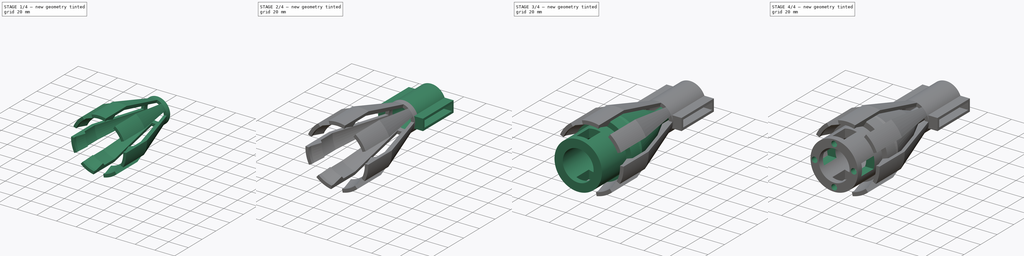
[diagram: build sequence overview — one tinted view per stage of 4, left to right]
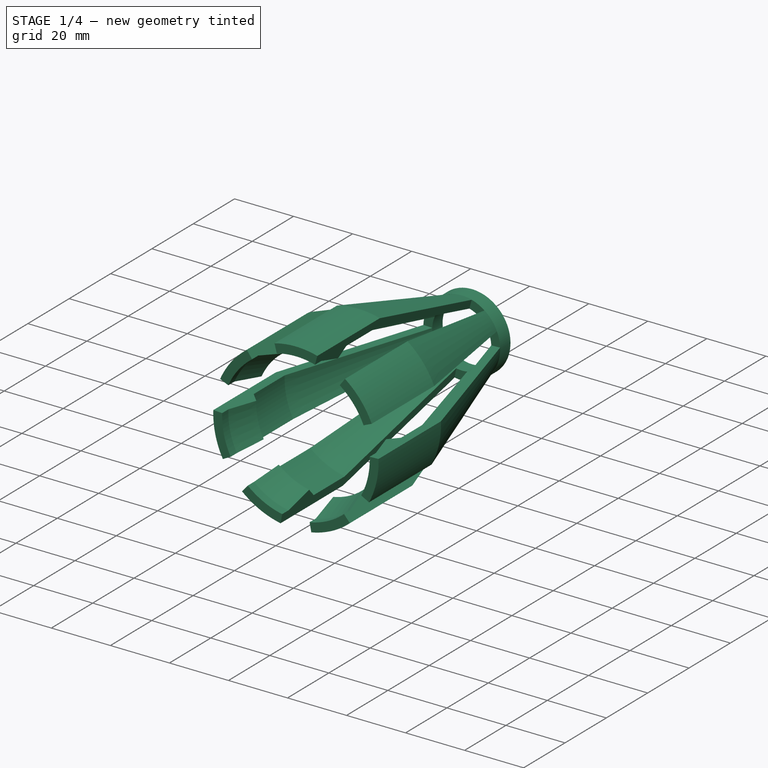
[diagram: stage 1 of 4 — iso view after this stage's code; geometry added in this stage tinted green]
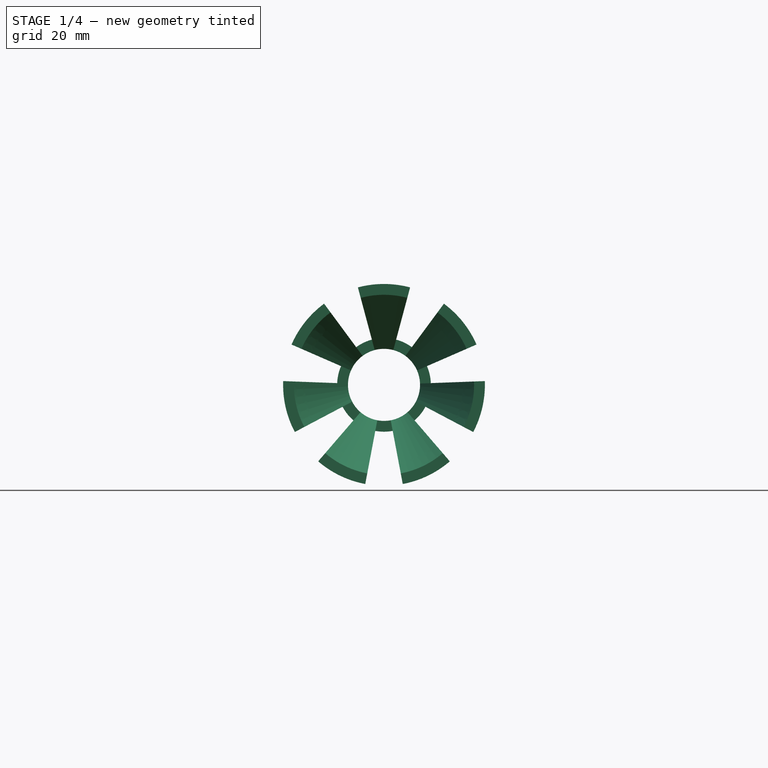
[diagram: stage 1 of 4 — front view after this stage's code; geometry added in this stage tinted green]
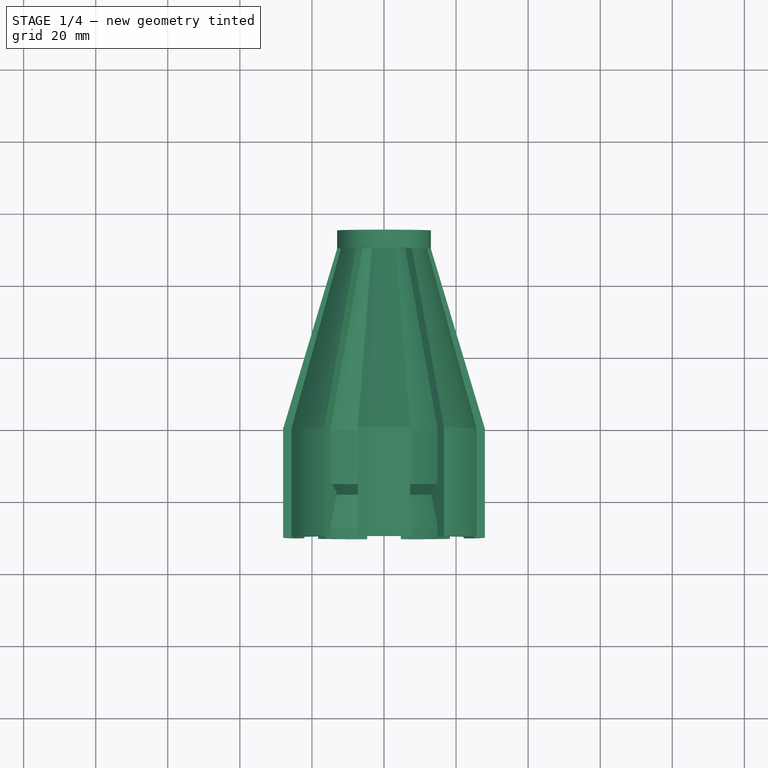
[diagram: stage 1 of 4 — top view after this stage's code; geometry added in this stage tinted green]
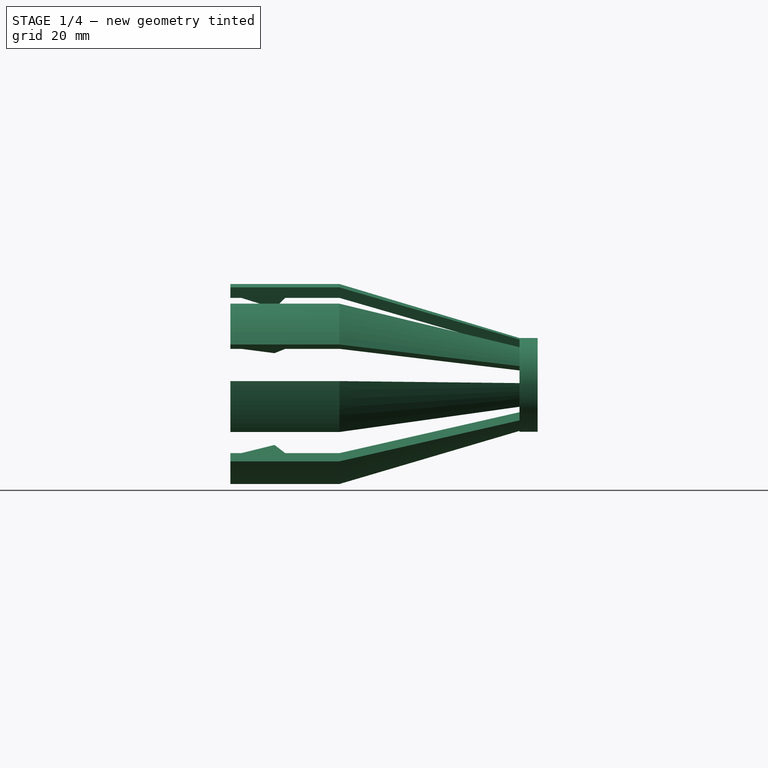
[diagram: stage 1 of 4 — right view after this stage's code; geometry added in this stage tinted green]
FCSTD DOCUMENT  (FreeCAD 0.19R24276 (Git))
Label: connector
License: All rights reserved
LicenseURL: http://en.wikipedia.org/wiki/All_rights_reserved
objects: Sketcher::SketchObject×6, PartDesign::PolarPattern×4, PartDesign::Revolution×3, PartDesign::Pad×2, PartDesign::ShapeBinder×2, PartDesign::Body×2, PartDesign::SubtractiveBox×1, PartDesign::Hole×1
note: 28 computed .brp shape members not serialized (recipe doc carries the construction recipe); baked Part::Feature solids carry a one-line shape summary decoded from their .brp

FEATURE [Sketcher::SketchObject] Sketch
  FullyConstrained = true
  MapMode = 5
  Placement = pos=(0,0,0) rot=(0.57735,0.57735,0.57735;2.0944rad)
  Support = -> [YZ_Plane]
  sketch-geometry (15):
    g0: LineSegment StartX=0 StartY=0 StartZ=0 EndX=50 EndY=0 EndZ=0
    g1: LineSegment StartX=0 StartY=0 StartZ=0 EndX=0 EndY=25 EndZ=0
    g2: LineSegment StartX=50 StartY=0 StartZ=0 EndX=50 EndY=10 EndZ=0
    g3: LineSegment StartX=50 StartY=10 StartZ=0 EndX=0 EndY=25 EndZ=0
    g4: LineSegment StartX=0 StartY=25 StartZ=0 EndX=0 EndY=28 EndZ=0
    g5: LineSegment StartX=50 StartY=10 StartZ=0 EndX=50 EndY=13 EndZ=0
    g6: LineSegment StartX=50 StartY=13 StartZ=0 EndX=0 EndY=28 EndZ=0
    g7: LineSegment StartX=-30.2331 StartY=28 StartZ=0 EndX=-30.2331 EndY=25 EndZ=0
    g8: LineSegment StartX=-30.2331 StartY=25 StartZ=0 EndX=0 EndY=25 EndZ=0
    g9: LineSegment StartX=-27.2331 StartY=25 StartZ=0 EndX=-18 EndY=22 EndZ=0
    g10: LineSegment StartX=-18 StartY=22 StartZ=0 EndX=-15 EndY=25 EndZ=0
    g11: LineSegment StartX=-18 StartY=22 StartZ=0 EndX=-18 EndY=25 EndZ=0
    g12: LineSegment StartX=-30.2331 StartY=25 StartZ=0 EndX=-27.2331 EndY=25 EndZ=0
    g13: LineSegment StartX=-15 StartY=25 StartZ=0 EndX=0 EndY=25 EndZ=0
    g14: LineSegment StartX=-30.2331 StartY=28 StartZ=0 EndX=0 EndY=28 EndZ=0
  constraints (41):
    c: Coincident(g0,g-1)
    c: PointOnObject(g0,g-1)
    c: Distance(g0) = 50
    c: Coincident(g1,g-1)
    c: PointOnObject(g1,g-2)
    c: Distance(g1) = 25
    c: Coincident(g2,g0)
    c: Vertical(g2)
    c: Coincident(g3,g2)
    c: Coincident(g3,g1)
    c: Distance(g2) = 10
    c: Coincident(g4,g3)
    c: PointOnObject(g4,g-2)
    c: Coincident(g5,g2)
    c: Vertical(g5)
    c: Coincident(g6,g5)
    c: Coincident(g6,g4)
    c: Distance(g4) = 3
    c: Vertical(g7)
    c: Distance(g5) = 3
    c: Coincident(g8,g3)
    c: Horizontal(g8)
    c: Coincident(g10,g9)
    c: PointOnObject(g10,g8)
    c: Angle(g9,g8) = 0.314159
    c: Distance(g9,g8) = 3
    c: Angle(g10,g8) = 2.35619
    c: Coincident(g11,g9)
    c: PointOnObject(g11,g8)
    c: Vertical(g11)
    c: PointOnObject(g9,g8)
    c: Distance(g7,g9) = 3
    c: Coincident(g8,g7)
    c: Coincident(g12,g7)
    c: Coincident(g12,g9)
    c: Coincident(g13,g10)
    c: Coincident(g14,g6)
    c: Horizontal(g14)
    c: Coincident(g13,g3)
    c: DistanceX(g9,g3) = 18
    c: Coincident(g14,g7)
FEATURE [PartDesign::Revolution] Revolution
  Angle = 30
  Axis = (1e-16,1,-1e-16)
  Base = (0,0,0)
  Midplane = true
  Placement = pos=(0,0,0) rot=(0.57735,0.57735,0.57735;2.0944rad)
  Profile = -> Sketch
  ReferenceAxis = -> Y_Axis
  Reversed = true
FEATURE [Sketcher::SketchObject] Sketch003
  ExternalGeometry = -> [Revolution]
  FullyConstrained = true
  MapMode = 5
  Placement = pos=(5.6e-15,50,-2.22e-14) rot=(0.57735,0.57735,0.57735;4.18879rad)
  Support = -> [Revolution]
  sketch-geometry (2):
    g0: Circle CenterX=0 CenterY=0 CenterZ=0 NormalX=0 NormalY=0 NormalZ=1 AngleXU=0 Radius=10
    g1: Circle CenterX=0 CenterY=0 CenterZ=0 NormalX=0 NormalY=0 NormalZ=1 AngleXU=0 Radius=13
  constraints (4):
    c: PointOnObject(g-3,g0)
    c: PointOnObject(g-4,g1)
    c: Coincident(g1,g-1)
    c: Coincident(g0,g1)
FEATURE [PartDesign::Pad] Pad
  BaseFeature = -> Revolution
  Direction = (1,1,1)
  Length = 5
  Length2 = 100
  Placement = pos=(0,0,0) rot=(0.57735,0.57735,0.57735;2.0944rad)
  Profile = -> Sketch003
  Type = 0
FEATURE [PartDesign::PolarPattern] PolarPattern
  Angle = 360
  Axis = -> Y_Axis
  BaseFeature = -> Pad
  Occurrences = 7
  Originals = -> [Revolution]
  Placement = pos=(0,0,0) rot=(0.57735,0.57735,0.57735;2.0944rad)
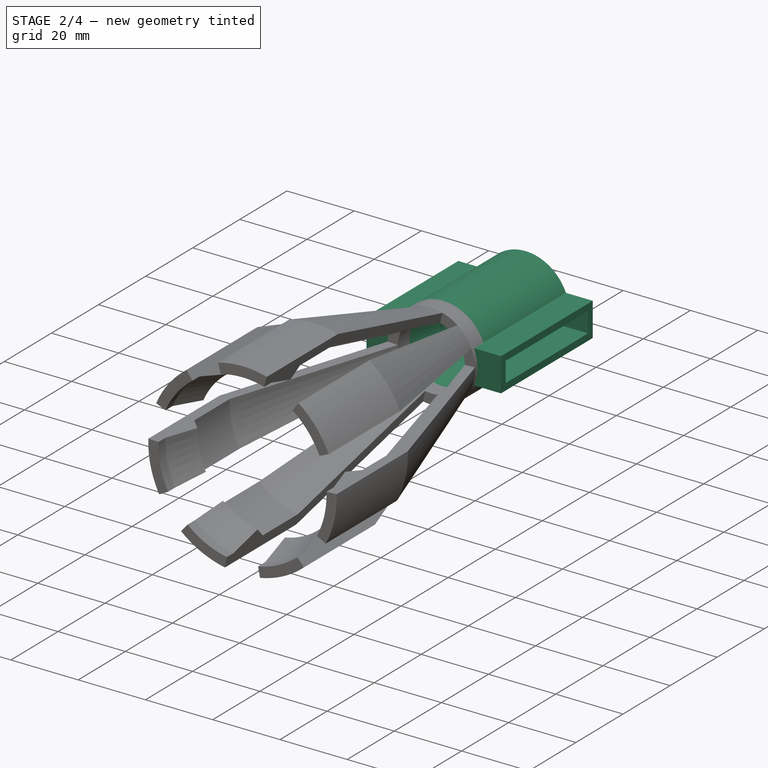
[diagram: stage 2 of 4 — iso view after this stage's code; geometry added in this stage tinted green]
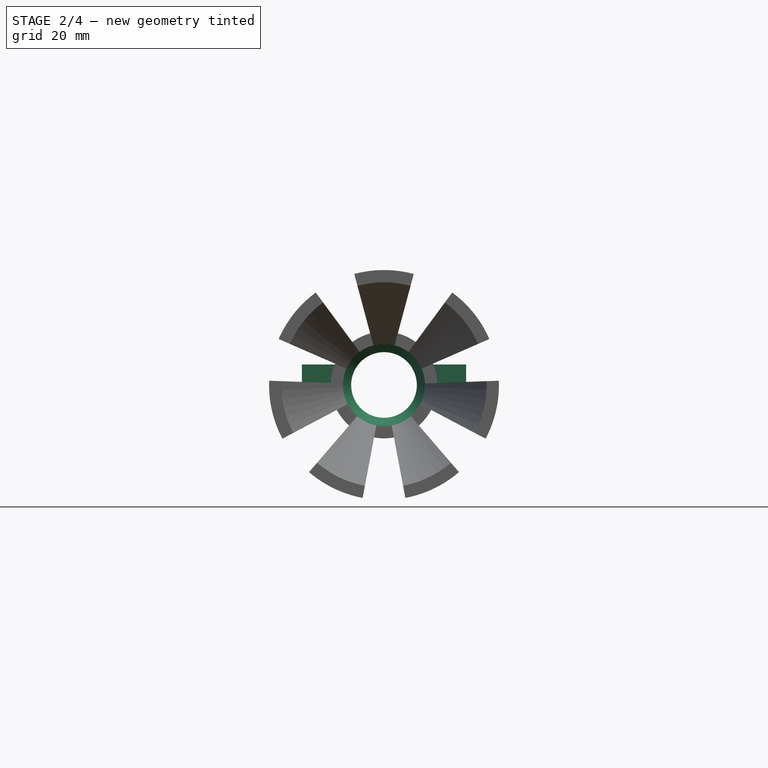
[diagram: stage 2 of 4 — front view after this stage's code; geometry added in this stage tinted green]
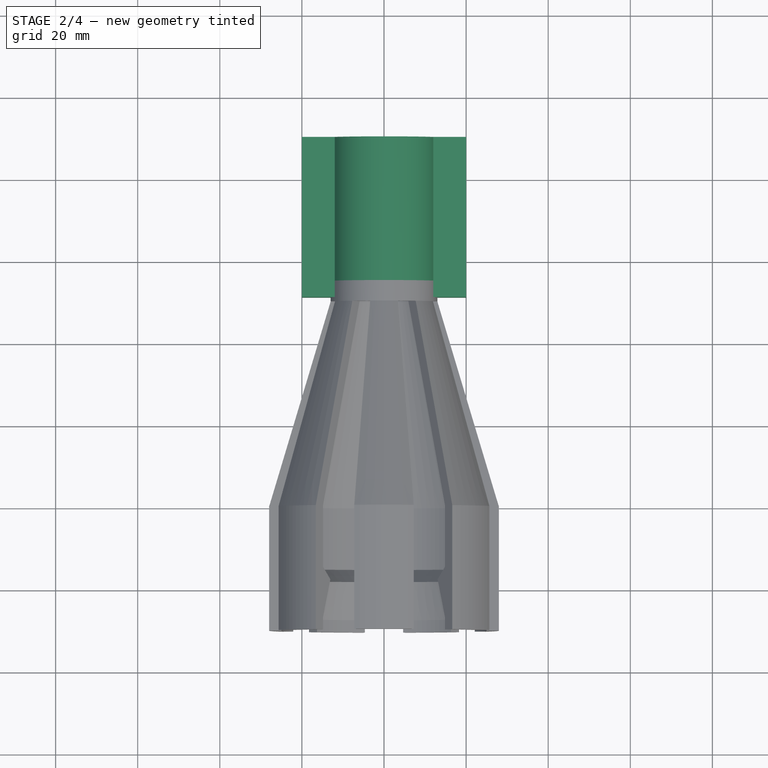
[diagram: stage 2 of 4 — top view after this stage's code; geometry added in this stage tinted green]
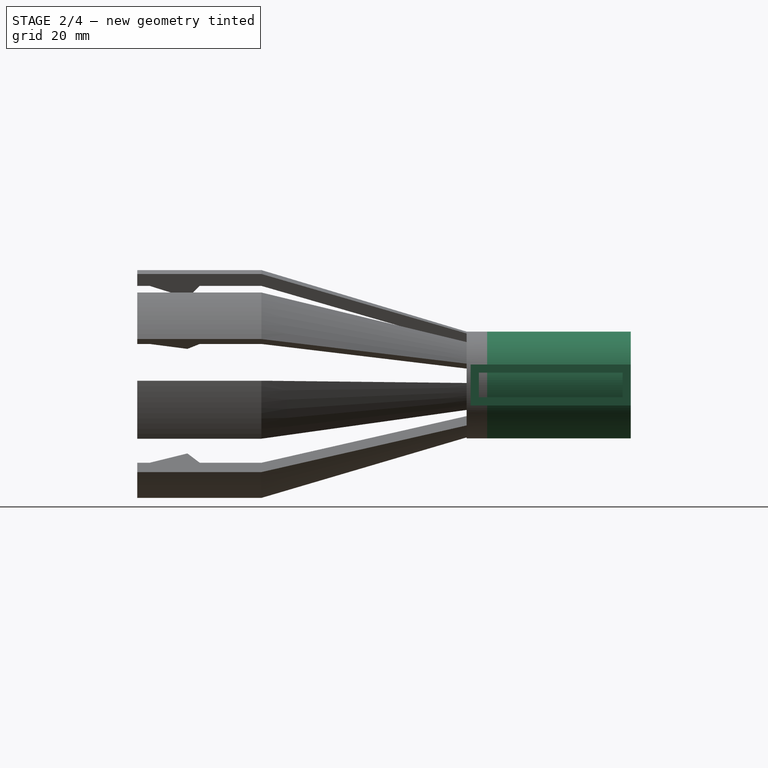
[diagram: stage 2 of 4 — right view after this stage's code; geometry added in this stage tinted green]
FEATURE [Sketcher::SketchObject] Sketch004
  ExternalGeometry = -> [PolarPattern]
  FullyConstrained = true
  MapMode = 5
  Placement = pos=(0,0,0) rot=(0.57735,0.57735,0.57735;2.0944rad)
  Support = -> [YZ_Plane]
  sketch-geometry (6):
    g0: LineSegment StartX=55 StartY=13 StartZ=0 EndX=90 EndY=13 EndZ=0
    g1: LineSegment StartX=65 StartY=8 StartZ=0 EndX=90 EndY=8 EndZ=0
    g2: LineSegment StartX=90 StartY=8 StartZ=0 EndX=90 EndY=13 EndZ=0
    g3: LineSegment StartX=55 StartY=10 StartZ=0 EndX=55 EndY=13 EndZ=0
    g4: LineSegment StartX=65 StartY=8 StartZ=0 EndX=55 EndY=10 EndZ=0
    g5: LineSegment StartX=90 StartY=8 StartZ=0 EndX=90 EndY=0 EndZ=0
  constraints (16):
    c: Coincident(g2,g1)
    c: Coincident(g2,g0)
    c: Distance(g1) = 25
    c: Coincident(g4,g1)
    c: Coincident(g4,g3)
    c: Horizontal(g1)
    c: DistanceX(g3,g1) = 10
    c: Coincident(g3,g0)
    c: Vertical(g2)
    c: Horizontal(g0)
    c: Coincident(g5,g1)
    c: PointOnObject(g5,g-1)
    c: Vertical(g5)
    c: DistanceY(g5,g5) = 8
    c: Coincident(g0,g-4)
    c: Coincident(g3,g-5)
FEATURE [PartDesign::Revolution] Revolution001
  Angle = 360
  Axis = (1e-16,1,-1e-16)
  Base = (0,0,0)
  BaseFeature = -> PolarPattern
  Placement = pos=(0,0,0) rot=(0.57735,0.57735,0.57735;2.0944rad)
  Profile = -> Sketch004
  ReferenceAxis = -> Y_Axis
FEATURE [PartDesign::Body] Body001  label="male"
  Group = -> [ShapeBinder,ShapeBinder001,Sketch007,Revolution002,Box,PolarPattern001,Sketch008,Hole,PolarPattern002]
  Origin = -> Origin001
  Tip = -> PolarPattern002
FEATURE [Sketcher::SketchObject] Sketch009
  AttachmentOffset = pos=(0,0,10) rot=(0,0,1;0rad)
  ExternalGeometry = -> [Sketch004]
  FullyConstrained = true
  MapMode = 5
  Placement = pos=(10,-2.2e-15,2.2e-15) rot=(0.57735,0.57735,0.57735;2.0944rad)
  Support = -> [YZ_Plane]
  sketch-geometry (12):
    g0: LineSegment StartX=51 StartY=5 StartZ=0 EndX=90 EndY=5 EndZ=0
    g1: LineSegment StartX=90 StartY=5 StartZ=0 EndX=90 EndY=-5 EndZ=0
    g2: LineSegment StartX=90 StartY=-5 StartZ=0 EndX=51 EndY=-5 EndZ=0
    g3: LineSegment StartX=51 StartY=-5 StartZ=0 EndX=51 EndY=5 EndZ=0
    g4: LineSegment StartX=53 StartY=3 StartZ=0 EndX=88 EndY=3 EndZ=0
    g5: LineSegment StartX=88 StartY=3 StartZ=0 EndX=88 EndY=-3 EndZ=0
    g6: LineSegment StartX=88 StartY=-3 StartZ=0 EndX=53 EndY=-3 EndZ=0
    g7: LineSegment StartX=53 StartY=-3 StartZ=0 EndX=53 EndY=3 EndZ=0
    g8: LineSegment StartX=88 StartY=-3 StartZ=0 EndX=90 EndY=-3 EndZ=0
    g9: LineSegment StartX=88 StartY=3 StartZ=0 EndX=88 EndY=5 EndZ=0
    g10: LineSegment StartX=53 StartY=3 StartZ=0 EndX=51 EndY=3 EndZ=0
    g11: LineSegment StartX=53 StartY=-3 StartZ=0 EndX=53 EndY=-5 EndZ=0
  constraints (35):
    c: Coincident(g0,g1)
    c: Coincident(g1,g2)
    c: Coincident(g2,g3)
    c: Coincident(g3,g0)
    c: Horizontal(g0)
    c: Horizontal(g2)
    c: Vertical(g1)
    c: Vertical(g3)
    c: Coincident(g4,g5)
    c: Coincident(g5,g6)
    c: Coincident(g6,g7)
    c: Coincident(g7,g4)
    c: Horizontal(g4)
    c: Horizontal(g6)
    c: Vertical(g5)
    c: Coincident(g8,g5)
    c: PointOnObject(g8,g1)
    c: Horizontal(g8)
    c: Coincident(g9,g4)
    c: PointOnObject(g9,g0)
    c: Vertical(g9)
    c: Coincident(g10,g4)
    c: PointOnObject(g10,g3)
    c: Horizontal(g10)
    c: Coincident(g11,g6)
    c: PointOnObject(g11,g2)
    c: Vertical(g11)
    c: Distance(g10) = 2
    c: Equal(g10,g11)
    c: Equal(g11,g8)
    c: Equal(g9,g8)
    c: DistanceY(g5,g5) = 6
    c: DistanceX(g6,g6) = 35
    c: PointOnObject(g-4,g1)
    c: Symmetric(g4,g6,g-1)
FEATURE [PartDesign::Pad] Pad001
  BaseFeature = -> Revolution001
  Direction = (1,1,1)
  Length = 10
  Length2 = 100
  Placement = pos=(0,0,0) rot=(0.57735,0.57735,0.57735;2.0944rad)
  Profile = -> Sketch009
  Type = 0
FEATURE [PartDesign::PolarPattern] PolarPattern003
  Angle = 360
  Axis = -> Y_Axis
  BaseFeature = -> Pad001
  Occurrences = 2
  Originals = -> [Pad001]
  Placement = pos=(0,0,0) rot=(0.57735,0.57735,0.57735;2.0944rad)
FEATURE [PartDesign::Body] Body  label="female"
  Group = -> [Sketch,Revolution,Sketch003,Pad,PolarPattern,Sketch004,Revolution001,Sketch009,Pad001,PolarPattern003]
  Origin = -> Origin
  Tip = -> PolarPattern003
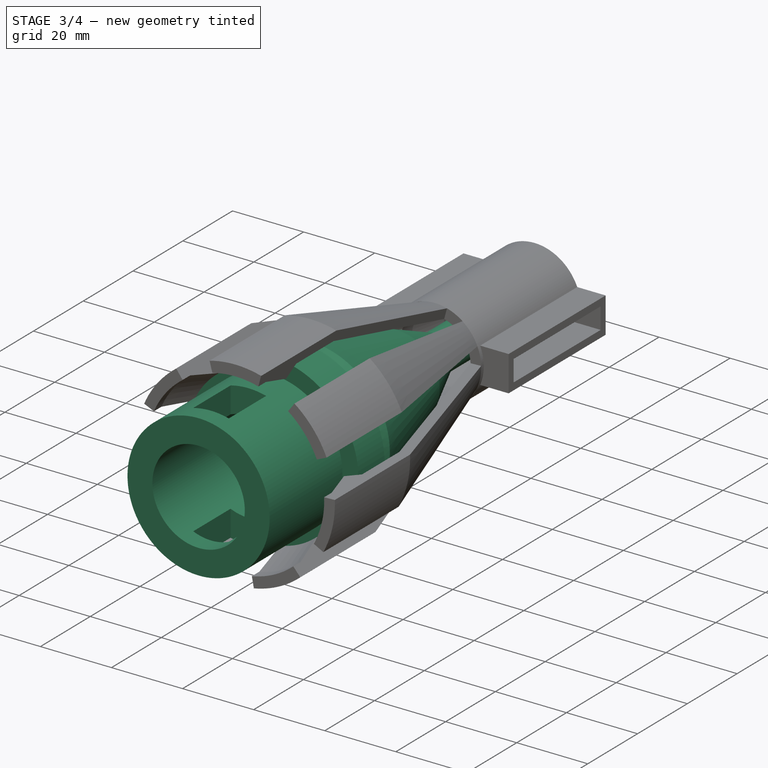
[diagram: stage 3 of 4 — iso view after this stage's code; geometry added in this stage tinted green]
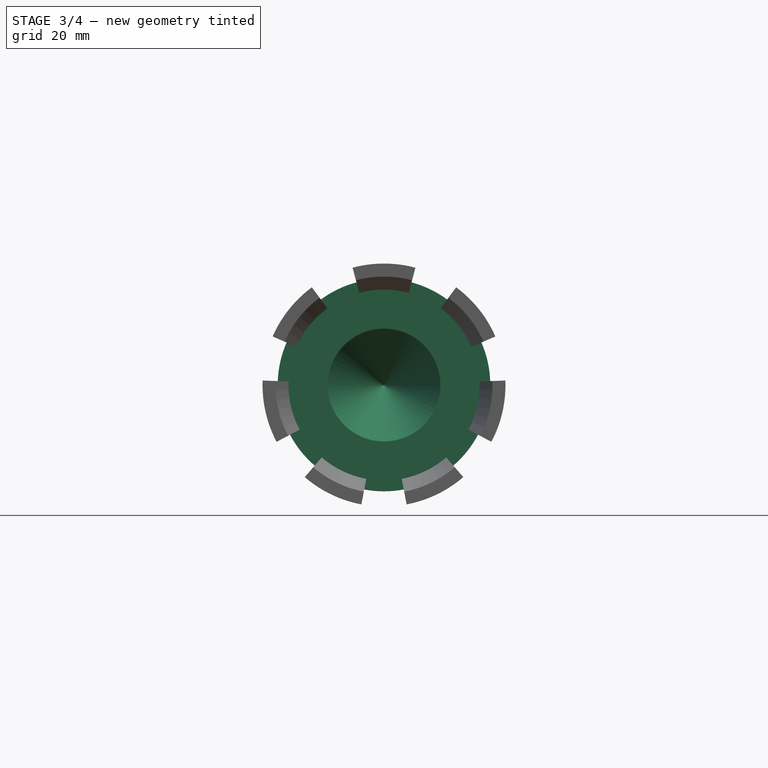
[diagram: stage 3 of 4 — front view after this stage's code; geometry added in this stage tinted green]
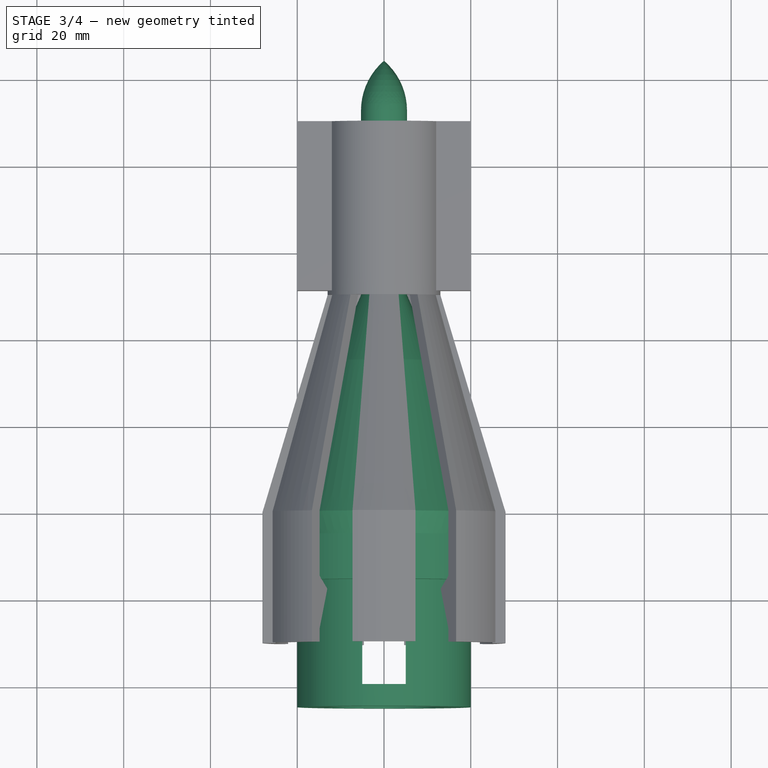
[diagram: stage 3 of 4 — top view after this stage's code; geometry added in this stage tinted green]
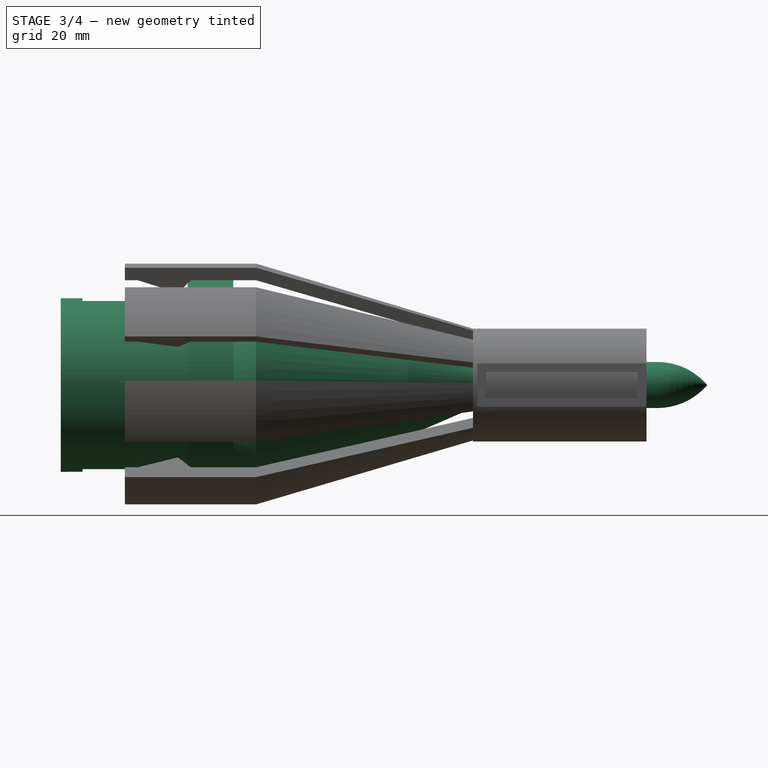
[diagram: stage 3 of 4 — right view after this stage's code; geometry added in this stage tinted green]
FEATURE [PartDesign::ShapeBinder] ShapeBinder
  Placement = pos=(0,0,0) rot=(0.57735,0.57735,0.57735;2.0944rad)
  Support = -> [Sketch]
  TraceSupport = false
FEATURE [PartDesign::ShapeBinder] ShapeBinder001
  Placement = pos=(0,0,0) rot=(0.57735,0.57735,0.57735;2.0944rad)
  Support = -> [Sketch004]
  TraceSupport = false
FEATURE [Sketcher::SketchObject] Sketch007
  ExternalGeometry = -> [ShapeBinder,ShapeBinder001]
  FullyConstrained = false
  MapMode = 5
  Placement = pos=(0,0,0) rot=(0.57735,0.57735,0.57735;2.0944rad)
  Support = -> [YZ_Plane001]
  sketch-geometry (17):
    g0: LineSegment StartX=-45 StartY=20 StartZ=0 EndX=-15.7576 EndY=20 EndZ=0
    g1: LineSegment StartX=-15.7576 StartY=20 StartZ=0 EndX=-15.7576 EndY=24.5 EndZ=0
    g2: LineSegment StartX=-15.7576 StartY=24.5 StartZ=0 EndX=-5.25757 EndY=24.5 EndZ=0
    g3: LineSegment StartX=-5.25757 StartY=24.5 StartZ=0 EndX=-5.25757 EndY=20.0635 EndZ=0
    g4: LineSegment StartX=-5.25757 StartY=20.0635 StartZ=0 EndX=0 EndY=22.3 EndZ=0
    g5: LineSegment StartX=0 StartY=22.3 StartZ=0 EndX=35 EndY=11.8 EndZ=0
    g6: LineSegment StartX=-15.7576 StartY=25 StartZ=0 EndX=-15.7576 EndY=24.5 EndZ=0
    g7: LineSegment StartX=-5.75757 StartY=22 StartZ=0 EndX=-5.25757 EndY=22 EndZ=0
    g8: LineSegment StartX=35 StartY=11.8 StartZ=0 EndX=50 EndY=5.3 EndZ=0
    g9: LineSegment StartX=50 StartY=5.3 StartZ=0 EndX=92.5584 EndY=5.3 EndZ=0
    g10: ArcOfCircle CenterX=92.5584 CenterY=-9.7 CenterZ=0 NormalX=0 NormalY=0 NormalZ=1 AngleXU=0 Radius=15 StartAngle=0.703206 EndAngle=1.5708
    g11: LineSegment StartX=92.5584 StartY=-9.7 StartZ=0 EndX=92.5584 EndY=5.3 EndZ=0
    g12: LineSegment StartX=-45 StartY=20 StartZ=0 EndX=-45 EndY=13 EndZ=0
    g13: LineSegment StartX=50 StartY=-8.9e-15 StartZ=0 EndX=104 EndY=0 EndZ=0
    g14: LineSegment StartX=50 StartY=-8.9e-15 StartZ=0 EndX=50 EndY=5.3 EndZ=0
    g15: LineSegment StartX=-45 StartY=13 StartZ=0 EndX=0 EndY=13 EndZ=0
    g16: LineSegment StartX=0 StartY=13 StartZ=0 EndX=50 EndY=-8.9e-15 EndZ=0
  constraints (39):
    c: Horizontal(g0)
    c: Coincident(g1,g0)
    c: Vertical(g1)
    c: Coincident(g2,g1)
    c: Horizontal(g2)
    c: Coincident(g3,g2)
    c: Vertical(g3)
    c: Coincident(g4,g3)
    c: PointOnObject(g4,g-2)
    c: Coincident(g5,g4)
    c: Coincident(g6,g1)
    c: Vertical(g6)
    c: PointOnObject(g7,g3)
    c: Horizontal(g7)
    c: Equal(g7,g6)
    c: Coincident(g8,g5)
    c: Coincident(g9,g8)
    c: Coincident(g10,g9)
    c: PointOnObject(g10,g-1)
    c: Coincident(g11,g10)
    c: Coincident(g11,g9)
    c: Vertical(g11)
    c: Distance(g11) = 15
    c: Coincident(g12,g0)
    c: Vertical(g12)
    c: Coincident(g13,g10)
    c: Coincident(g14,g13)
    c: Coincident(g14,g8)
    c: Vertical(g14)
    c: Parallel(g13,g9)
    c: Coincident(g15,g12)
    c: PointOnObject(g15,g-2)
    c: Horizontal(g15)
    c: Coincident(g16,g15)
    c: Coincident(g16,g13)
    c: Distance(g3,g7) = 2
    c: Distance(g0,g12) = 7
    c: Distance(g4,g8) = 52.811
    c: Distance(g5,g16) = 7.6458
FEATURE [PartDesign::Revolution] Revolution002
  Angle = 360
  Axis = (1e-16,1,-1e-16)
  Base = (0,0,0)
  Placement = pos=(0,0,0) rot=(0.57735,0.57735,0.57735;2.0944rad)
  Profile = -> Sketch007
  ReferenceAxis = -> Y_Axis001
FEATURE [PartDesign::SubtractiveBox] Box
  AttacherType = Attacher::AttachEngine3D
  AttachmentOffset = pos=(-5,-100,5) rot=(0,0,1;0rad)
  BaseFeature = -> Revolution002
  Height = 15
  Length = 10
  MapMode = 11
  Placement = pos=(-5,-40,100) rot=(-1,0,0;1.5708rad)
  Support = -> [Revolution002]
  Width = 200
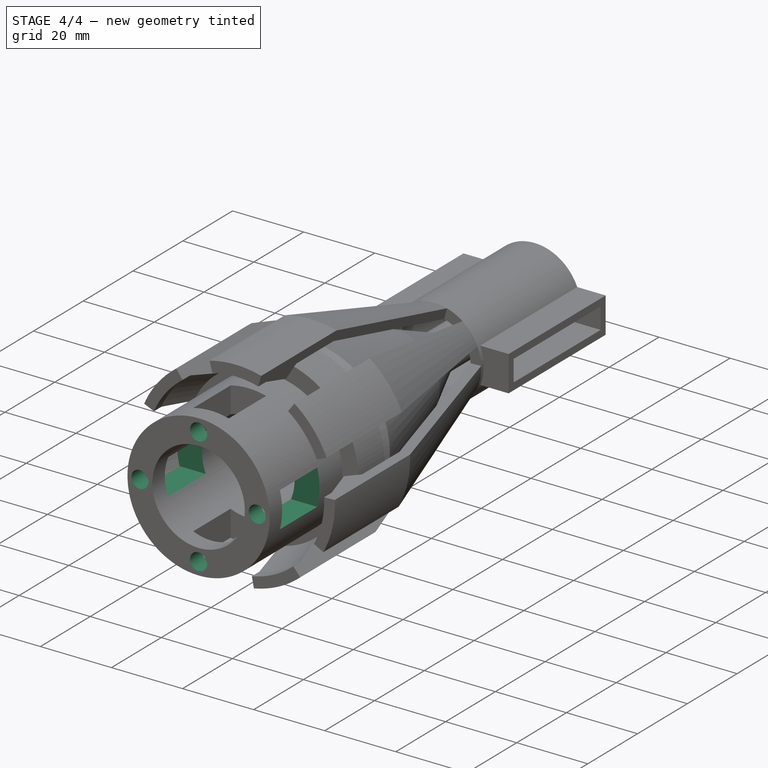
[diagram: stage 4 of 4 — iso view after this stage's code; geometry added in this stage tinted green]
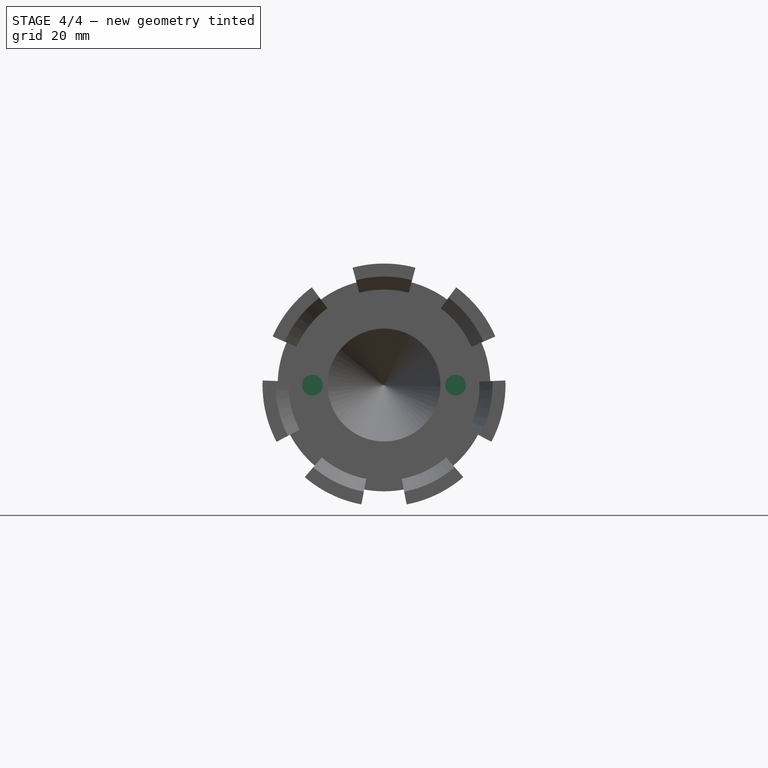
[diagram: stage 4 of 4 — front view after this stage's code; geometry added in this stage tinted green]
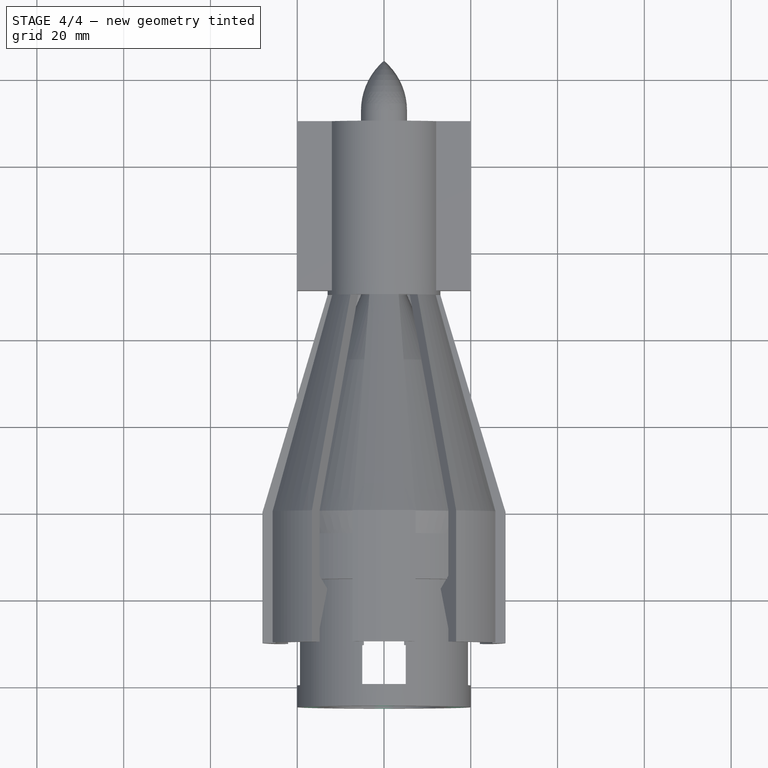
[diagram: stage 4 of 4 — top view after this stage's code; geometry added in this stage tinted green]
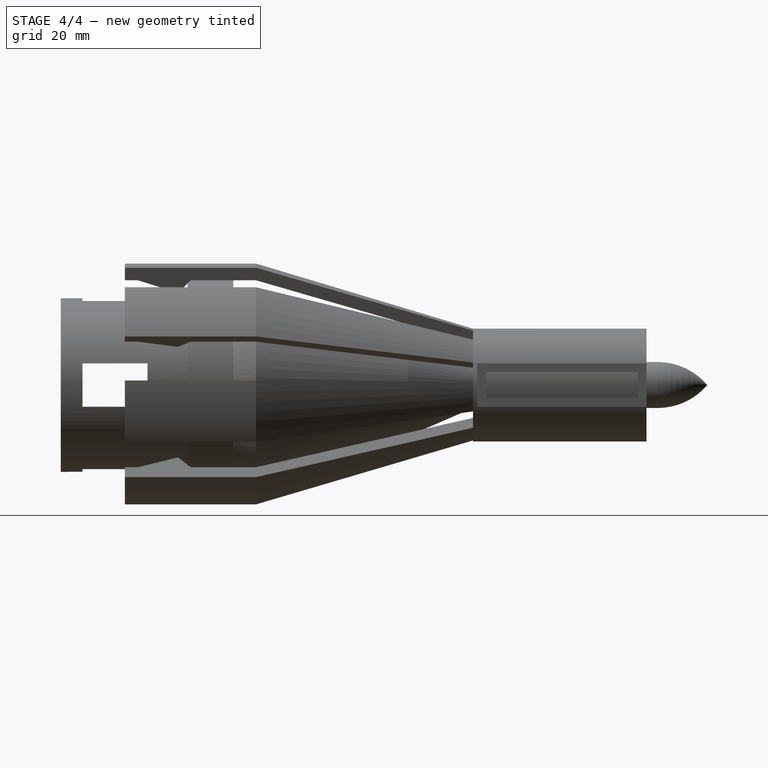
[diagram: stage 4 of 4 — right view after this stage's code; geometry added in this stage tinted green]
FEATURE [PartDesign::PolarPattern] PolarPattern001
  Angle = 90
  Axis = -> Y_Axis001
  BaseFeature = -> Box
  Occurrences = 2
  Originals = -> [Box]
  Placement = pos=(-5,-40,100) rot=(-1,0,0;1.5708rad)
FEATURE [Sketcher::SketchObject] Sketch008
  ExternalGeometry = -> [Sketch007]
  FullyConstrained = true
  MapMode = 5
  Placement = pos=(-5,-45,100) rot=(1,0,0;1.5708rad)
  Support = -> [PolarPattern001]
  sketch-geometry (1):
    g0: Circle CenterX=5 CenterY=-83.5 CenterZ=0 NormalX=0 NormalY=0 NormalZ=1 AngleXU=0 Radius=1.75
  constraints (2):
    c: Diameter(g0) = 3.5
    c: Symmetric(g-3,g-3,g0)
FEATURE [PartDesign::Hole] Hole
  BaseFeature = -> PolarPattern001
  Depth = 15
  DepthType = 0
  Diameter = 4.8
  DrillForDepth = false
  DrillPoint = 0
  DrillPointAngle = 118
  HoleCutCountersinkAngle = 90
  HoleCutCustomValues = false
  HoleCutDepth = 3.4
  HoleCutDiameter = 6.1
  HoleCutType = 0
  ModelActualThread = false
  Placement = pos=(-5,-40,100) rot=(-1,0,0;1.5708rad)
  Profile = -> Sketch008
  Tapered = false
  TaperedAngle = 90
  ThreadAngle = 60
  ThreadClass = 0
  ThreadCutOffInner = 0.0541266
  ThreadCutOffOuter = 0.108253
  ThreadDirection = 0
  ThreadFit = 2
  ThreadPitch = 0.5
  ThreadSize = 11
  ThreadType = 1
  Threaded = false
FEATURE [PartDesign::PolarPattern] PolarPattern002
  Angle = 360
  Axis = -> Y_Axis001
  BaseFeature = -> Hole
  Occurrences = 4
  Originals = -> [Hole]
  Placement = pos=(-5,-40,100) rot=(-1,0,0;1.5708rad)
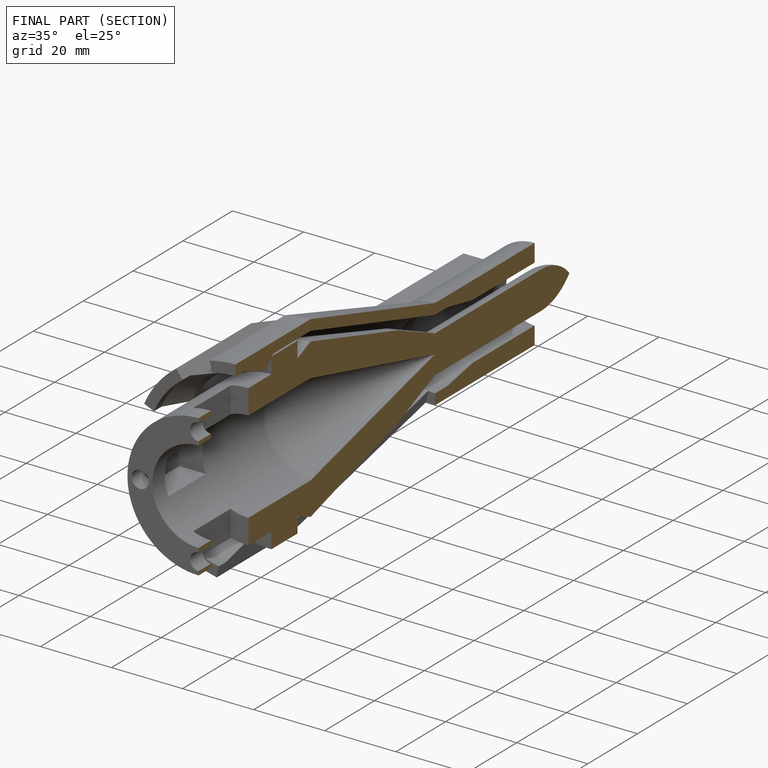
[diagram: finished part — half-section view (interior)]
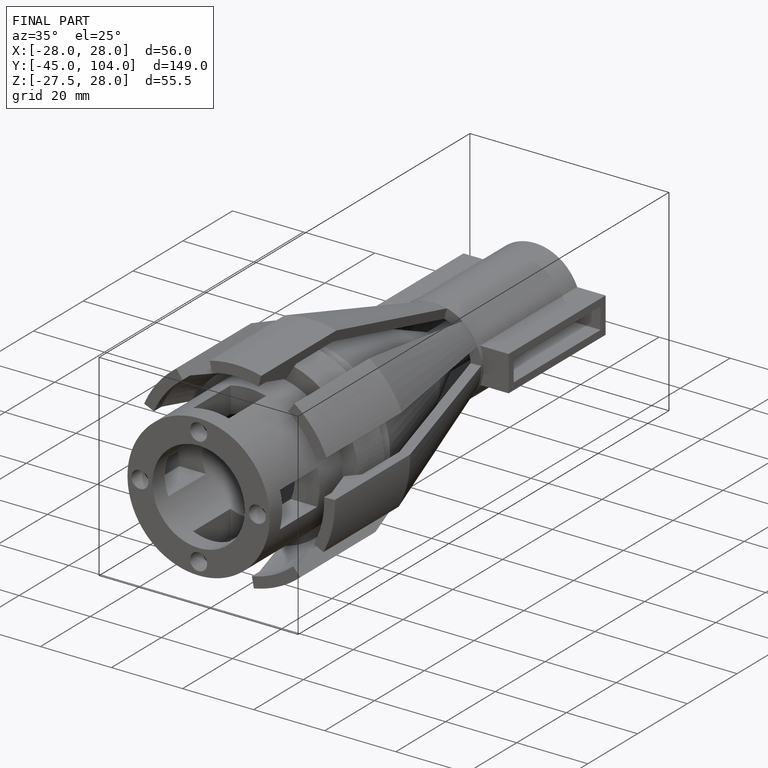
[diagram: finished part — iso view with bounding-box wireframe]
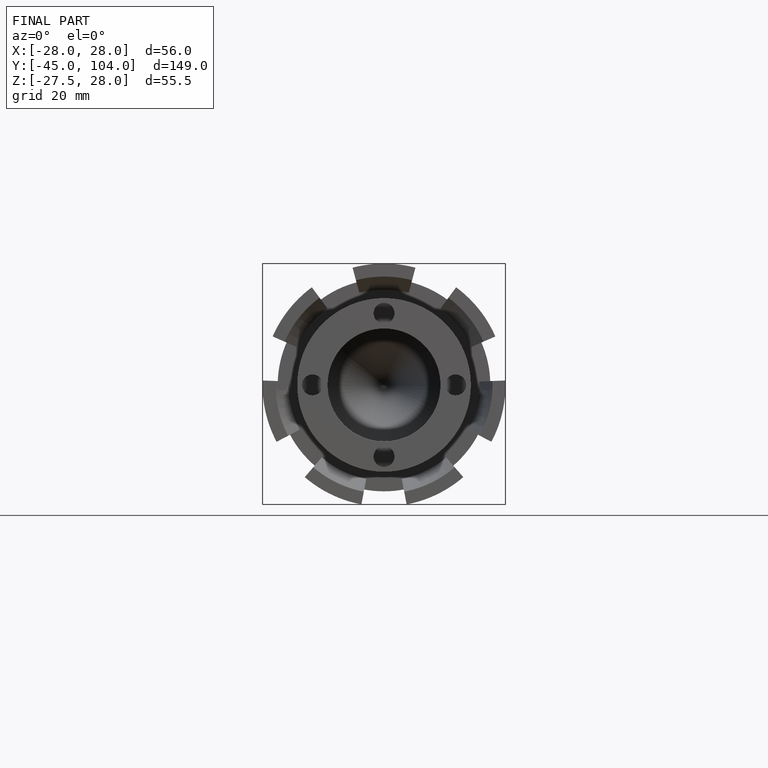
[diagram: finished part — front view with bounding-box wireframe]
